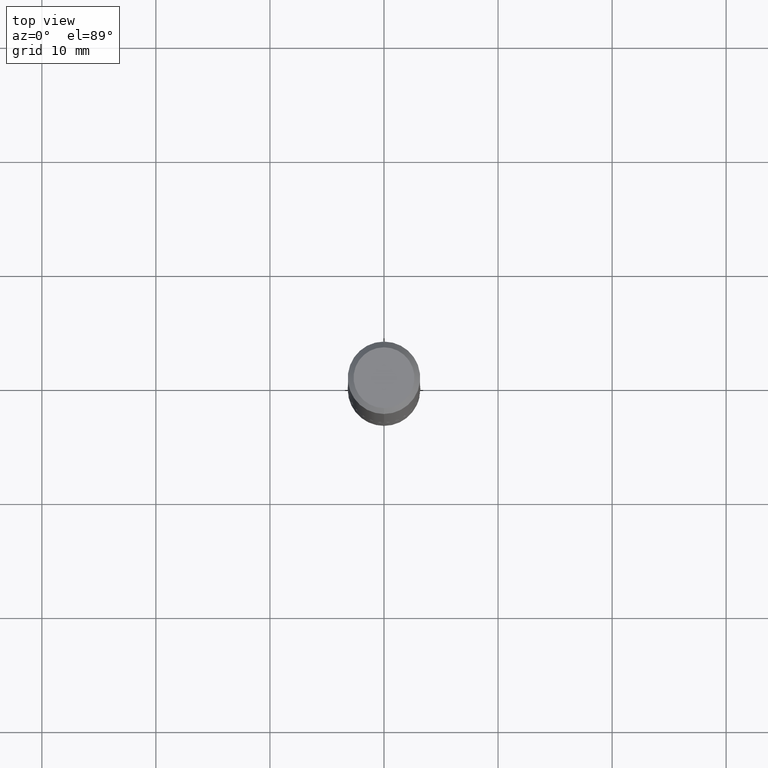
[diagram: clean part render]
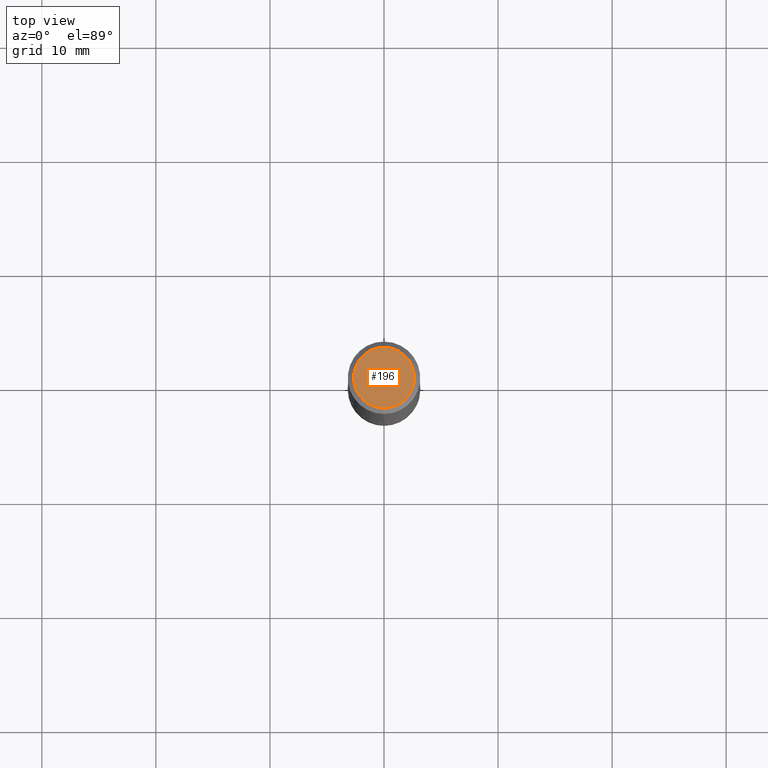
[diagram: same view with one face highlighted and labeled with its STEP entity id]
A machine part, top view. The second image highlights one B-rep face of the part: STEP entity #196.
In plain terms, the highlighted planar face has unit normal (0, -0, -1).
Its self-contained STEP definition (entity closure, byte-faithful):
#4 = DIRECTION ( 'NONE',  ( -6.982962677686267499E-15, -1.000000000000000000, 3.491141472859906642E-15 ) ) ;
#9 = ORIENTED_EDGE ( 'NONE', *, *, #95, .T. ) ;
#13 = EDGE_LOOP ( 'NONE', ( #100, #9 ) ) ;
#17 = VERTEX_POINT ( 'NONE', #164 ) ;
#21 = CIRCLE ( 'NONE', #289, 0.1049999999999999684 ) ;
#34 = EDGE_CURVE ( 'NONE', #98, #17, #216, .T. ) ;
#92 = AXIS2_PLACEMENT_3D ( 'NONE', #170, #112, #108 ) ;
#95 = EDGE_CURVE ( 'NONE', #17, #98, #21, .T. ) ;
#98 = VERTEX_POINT ( 'NONE', #328 ) ;
#100 = ORIENTED_EDGE ( 'NONE', *, *, #34, .T. ) ;
#102 = CARTESIAN_POINT ( 'NONE',  ( -1.043079944788907610E-45, 1.488952251920240630E-31, 4.264943897276400557E-17 ) ) ;
#108 = DIRECTION ( 'NONE',  ( 6.982962677686265922E-15, 1.000000000000000000, -3.491141472859906642E-15 ) ) ;
#112 = DIRECTION ( 'NONE',  ( 2.445706133332773460E-29, -3.491141472859906642E-15, -1.000000000000000000 ) ) ;
#163 = DIRECTION ( 'NONE',  ( -6.982962677686267499E-15, -1.000000000000000000, 3.491141472859906642E-15 ) ) ;
#164 = CARTESIAN_POINT ( 'NONE',  ( -7.889572697437258181E-16, -0.1049999999999999684, 4.092192936230540876E-16 ) ) ;
#165 = DIRECTION ( 'NONE',  ( -2.445706133332774021E-29, 3.491141472859906642E-15, 1.000000000000000000 ) ) ;
#170 = CARTESIAN_POINT ( 'NONE',  ( 7.332110811570578271E-16, 0.1049999999999999684, -3.452451351639080670E-16 ) ) ;
#192 = CARTESIAN_POINT ( 'NONE',  ( -1.043079944788907610E-45, 1.488952251920240630E-31, 4.264943897276400557E-17 ) ) ;
#196 = ADVANCED_FACE ( 'NONE', ( #266 ), #329, .F. ) ;
#216 = CIRCLE ( 'NONE', #367, 0.1049999999999999684 ) ;
#266 = FACE_OUTER_BOUND ( 'NONE', #13, .T. ) ;
#289 = AXIS2_PLACEMENT_3D ( 'NONE', #102, #165, #4 ) ;
#322 = DIRECTION ( 'NONE',  ( -2.445706133332774021E-29, 3.491141472859906642E-15, 1.000000000000000000 ) ) ;
#328 = CARTESIAN_POINT ( 'NONE',  ( 8.030407079339207309E-16, 0.1049999999999999684, -3.239204156775260765E-16 ) ) ;
#329 = PLANE ( 'NONE',  #92 ) ;
#367 = AXIS2_PLACEMENT_3D ( 'NONE', #192, #322, #163 ) ;